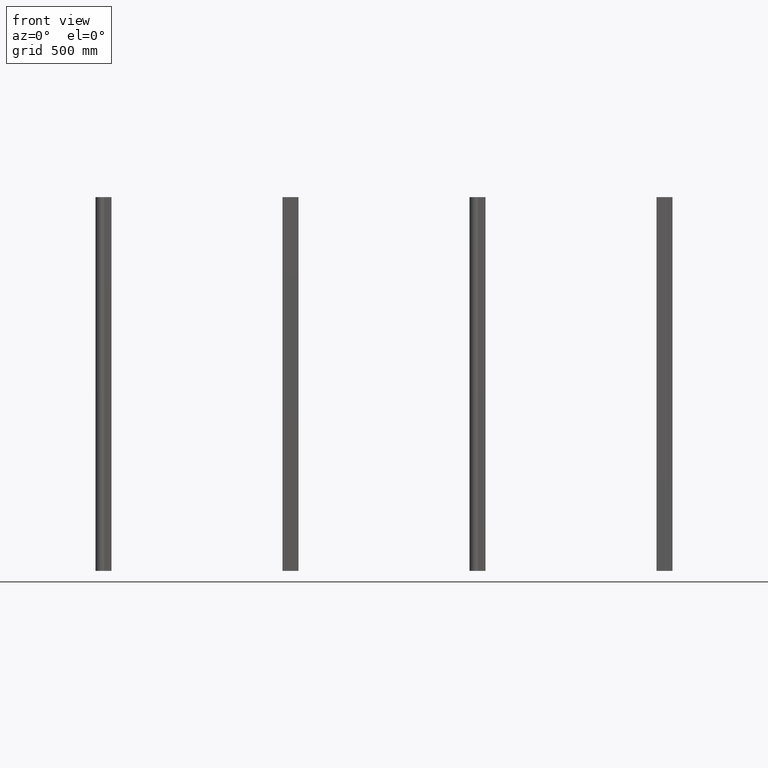
[diagram: clean part render]
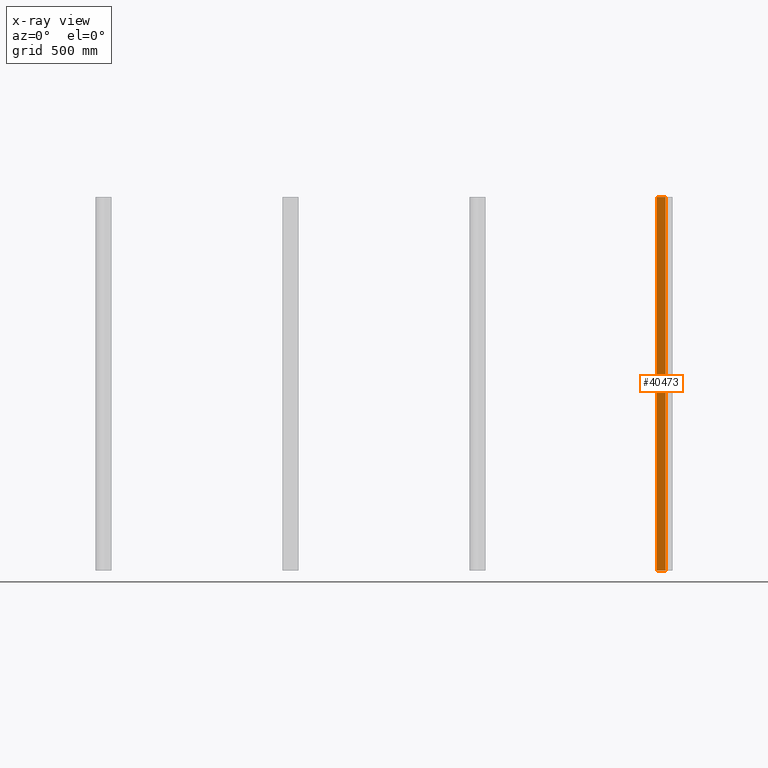
[diagram: x-ray — body ghosted, one internal face saturated and labeled with its STEP entity id]
A machine part, front view, then the same camera in x-ray: the body is ghosted and one INTERNAL B-rep face — a face not visible from any outside direction — is saturated and labeled: STEP entity #40473.
In plain terms, the highlighted planar face has unit normal (0, 1, -0).
Its self-contained STEP definition (entity closure, byte-faithful):
#1428=PLANE('',#44829);
#4257=LINE('',#78076,#7206);
#4258=LINE('',#78079,#7207);
#4259=LINE('',#78081,#7208);
#4260=LINE('',#78082,#7209);
#7206=VECTOR('',#56217,10.);
#7207=VECTOR('',#56220,10.);
#7208=VECTOR('',#56221,10.);
#7209=VECTOR('',#56222,10.);
#10353=FACE_OUTER_BOUND('',#12594,.T.);
#12594=EDGE_LOOP('',(#36760,#36761,#36762,#36763));
#18693=VERTEX_POINT('',#78072);
#18694=VERTEX_POINT('',#78074);
#18695=VERTEX_POINT('',#78078);
#18696=VERTEX_POINT('',#78080);
#24751=EDGE_CURVE('',#18693,#18694,#4257,.T.);
#24752=EDGE_CURVE('',#18695,#18693,#4258,.T.);
#24753=EDGE_CURVE('',#18696,#18694,#4259,.T.);
#24754=EDGE_CURVE('',#18695,#18696,#4260,.T.);
#36760=ORIENTED_EDGE('',*,*,#24752,.T.);
#36761=ORIENTED_EDGE('',*,*,#24751,.T.);
#36762=ORIENTED_EDGE('',*,*,#24753,.F.);
#36763=ORIENTED_EDGE('',*,*,#24754,.F.);
#40473=ADVANCED_FACE('',(#10353),#1428,.T.);
#44829=AXIS2_PLACEMENT_3D('',#78077,#56218,#56219);
#56217=DIRECTION('',(0.,0.,1.));
#56218=DIRECTION('center_axis',(0.,-1.,0.));
#56219=DIRECTION('ref_axis',(1.,0.,0.));
#56220=DIRECTION('',(1.,0.,0.));
#56221=DIRECTION('',(1.,0.,0.));
#56222=DIRECTION('',(0.,0.,1.));
#78072=CARTESIAN_POINT('',(48.8052765834764,10.6101106696378,1.));
#78074=CARTESIAN_POINT('',(48.8052765834764,10.6101106696378,1999.));
#78076=CARTESIAN_POINT('',(48.8052765834764,10.6101106696378,0.));
#78077=CARTESIAN_POINT('Origin',(2.20527658347692,10.6101106696378,0.));
#78078=CARTESIAN_POINT('',(2.20527658347692,10.6101106696378,1.));
#78079=CARTESIAN_POINT('',(2.20527658347692,10.6101106696378,1.));
#78080=CARTESIAN_POINT('',(2.20527658347692,10.6101106696378,1999.));
#78081=CARTESIAN_POINT('',(2.20527658347692,10.6101106696378,1999.));
#78082=CARTESIAN_POINT('',(2.20527658347692,10.6101106696378,0.));